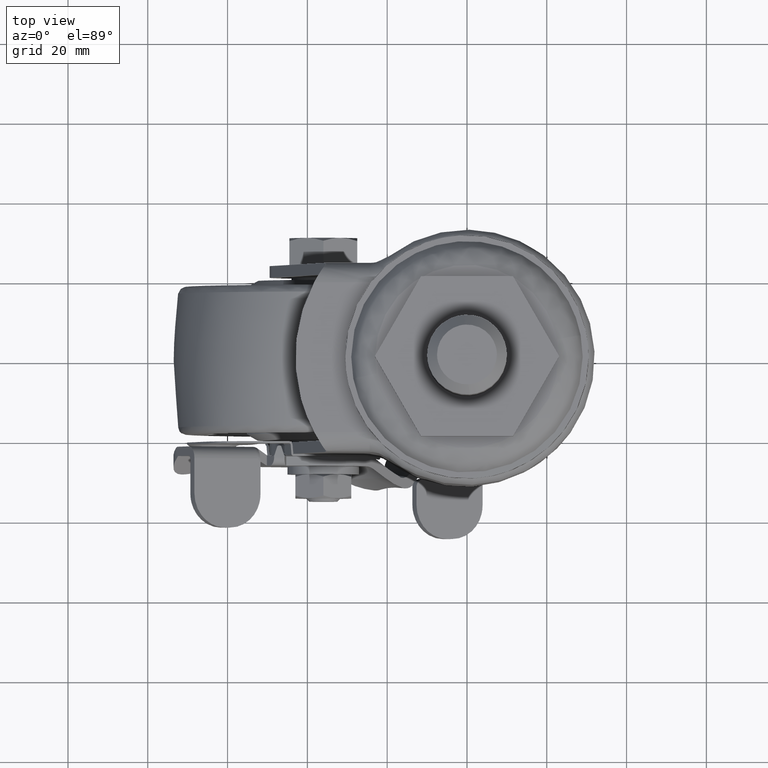
[diagram: clean part render]
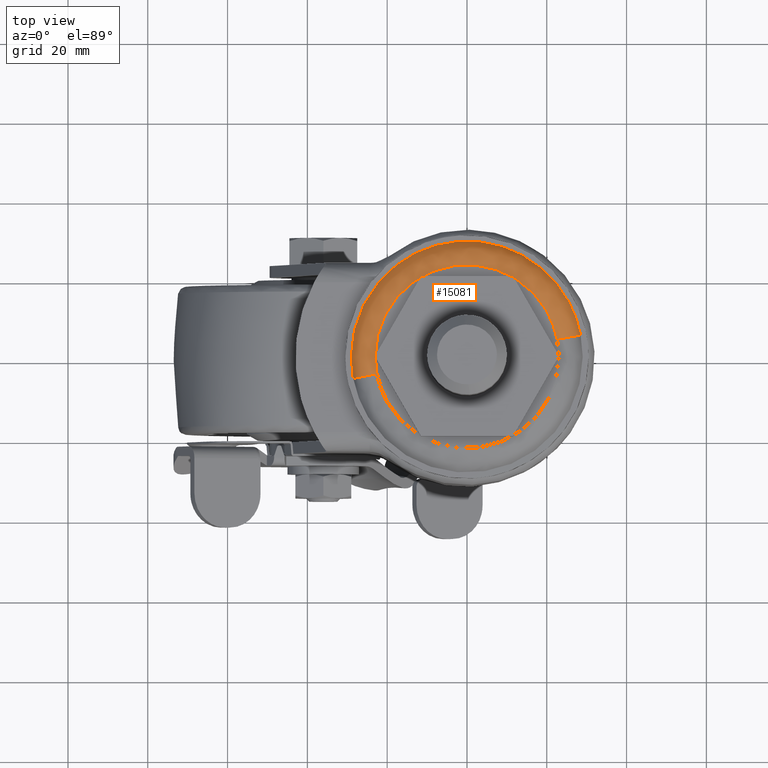
[diagram: same view with one face highlighted and labeled with its STEP entity id]
A machine part, top view. The second image highlights one B-rep face of the part: STEP entity #15081.
In plain terms, the highlighted face is a freeform B-spline surface patch.
Its self-contained STEP definition (entity closure, byte-faithful):
#14879=CARTESIAN_POINT('',(-22.592620522763319,-4.309772860066573,-1.379669E-014));
#14880=VERTEX_POINT('',#14879);
#14881=CARTESIAN_POINT('',(-23.000014000000000,0.0,0.0));
#14882=VERTEX_POINT('',#14881);
#14883=CARTESIAN_POINT('',(-22.592620522763326,-4.309772860066573,-1.379669E-014));
#14884=CARTESIAN_POINT('',(-23.000014002036718,-2.174141441147879,-6.898346E-015));
#14885=CARTESIAN_POINT('',(-23.000014000000000,0.0,0.0));
#14893=(BOUNDED_CURVE()B_SPLINE_CURVE(2,(#14883,#14884,#14885),.UNSPECIFIED.,.F.,.U.)B_SPLINE_CURVE_WITH_KNOTS((3,3),(0.967838633736956,1.0),.UNSPECIFIED.)CURVE()GEOMETRIC_REPRESENTATION_ITEM()RATIONAL_B_SPLINE_CURVE((0.934335795154084,0.962320615655114,1.0))REPRESENTATION_ITEM(''));
#14894=EDGE_CURVE('',#14880,#14882,#14893,.T.);
#14924=CARTESIAN_POINT('',(22.592620522763330,4.309772860066568,-1.367286E-014));
#14925=VERTEX_POINT('',#14924);
#14939=CARTESIAN_POINT('',(-23.000014000000000,0.0,0.0));
#14940=CARTESIAN_POINT('',(-23.000177241126341,1.459248833330094,-4.095208E-017));
#14941=CARTESIAN_POINT('',(-22.746658439741591,4.112367273721755,-1.908518E-016));
#14942=CARTESIAN_POINT('',(-21.794596104422300,7.576560490877744,-5.711724E-016));
#14943=CARTESIAN_POINT('',(-20.462933076416810,10.668897291321350,-1.053876E-015));
#14944=CARTESIAN_POINT('',(-18.845244056520350,13.319739327032970,-1.609192E-015));
#14945=CARTESIAN_POINT('',(-16.563184557954042,16.089016523005220,-2.365310E-015));
#14946=CARTESIAN_POINT('',(-13.979065139226810,18.395604768364759,-3.198211E-015));
#14947=CARTESIAN_POINT('',(-10.607552556040940,20.529696521291271,-4.260307E-015));
#14948=CARTESIAN_POINT('',(-7.125611407914833,21.989811167735990,-5.336290E-015));
#14949=CARTESIAN_POINT('',(-3.233496537008092,22.876532065584470,-6.518080E-015));
#14950=CARTESIAN_POINT('',(0.178057401774197,23.080250276325661,-7.537840E-015));
#14951=CARTESIAN_POINT('',(3.841281206887391,22.769784311966198,-8.617958E-015));
#14952=CARTESIAN_POINT('',(7.208875326105144,21.955036122953100,-9.596036E-015));
#14953=CARTESIAN_POINT('',(10.509918478421310,20.541013204099048,-1.053749E-014));
#14954=CARTESIAN_POINT('',(13.355471424822021,18.823372309845791,-1.133503E-014));
#14955=CARTESIAN_POINT('',(15.652507432867090,16.938002171326438,-1.196482E-014));
#14956=CARTESIAN_POINT('',(17.719150640714020,14.748813186406560,-1.251759E-014));
#14957=CARTESIAN_POINT('',(19.277544720913390,12.648635162941700,-1.292179E-014));
#14958=CARTESIAN_POINT('',(20.656982505836780,10.223972696669270,-1.326369E-014));
#14959=CARTESIAN_POINT('',(21.808459029643021,7.536420138508539,-1.353043E-014));
#14960=CARTESIAN_POINT('',(22.368979944525162,5.482569301257576,-1.363933E-014));
#14961=CARTESIAN_POINT('',(22.592620522763330,4.309772860066568,-1.367286E-014));
#14962=B_SPLINE_CURVE_WITH_KNOTS('',3,(#14939,#14940,#14941,#14942,#14943,#14944,#14945,#14946,#14947,#14948,#14949,#14950,#14951,#14952,#14953,#14954,#14955,#14956,#14957,#14958,#14959,#14960,#14961),.UNSPECIFIED.,.F.,.U.,(4,1,1,1,1,1,1,1,1,1,1,1,1,1,1,1,1,1,1,1,4),(0.000000130308166,4.377726954667715,7.959529496042968,10.745333997359580,14.459827259438670,17.245665271459661,21.490762058602250,24.807248666924071,29.184986131170231,32.766796483307722,36.746471852684827,39.399652408573701,43.777448995629292,47.093910793608700,50.145060054894110,53.726867299544693,55.982078803862848,59.165907230270392,61.553776716670768,64.339590681668014,67.921368663395427),.UNSPECIFIED.);
#14963=EDGE_CURVE('',#14882,#14925,#14962,.T.);
#14974=CARTESIAN_POINT('',(-22.096084218876928,-4.858699529451680,-0.012154295163467));
#14975=CARTESIAN_POINT('',(-22.154974723524884,-4.549984692902714,-0.012154295163467));
#14976=CARTESIAN_POINT('',(-26.452208210416028,17.976902136287794,-0.012154295163467));
#14977=CARTESIAN_POINT('',(-4.237653037064120,22.214555173351904,-0.012154295163467));
#14978=CARTESIAN_POINT('',(17.976902136287794,26.452208210416028,-0.012154295163467));
#14979=CARTESIAN_POINT('',(22.274135623131205,3.925321381475699,-0.012154295163467));
#14980=CARTESIAN_POINT('',(22.333026127732545,3.616606545171131,-0.012154295163467));
#14981=CARTESIAN_POINT('',(-27.726205353132354,-6.096704717827684,0.352151653519839));
#14982=CARTESIAN_POINT('',(-27.800101261975065,-5.709328797781053,0.352151653519839));
#14983=CARTESIAN_POINT('',(-33.192277401768784,22.557448428715869,0.352151653519839));
#14984=CARTESIAN_POINT('',(-5.317414486526457,27.874862915242343,0.352151653519839));
#14985=CARTESIAN_POINT('',(22.557448428715869,33.192277401768784,0.352151653519839));
#14986=CARTESIAN_POINT('',(27.949624568449714,4.925500175585777,0.352151653519839));
#14987=CARTESIAN_POINT('',(28.023520477233923,4.538124255845817,0.352151653519839));
#14988=CARTESIAN_POINT('',(-28.390646760437473,-6.242808485402192,-5.381540011107966));
#14989=CARTESIAN_POINT('',(-28.466313539150033,-5.846149340399469,-5.381540011107966));
#14990=CARTESIAN_POINT('',(-33.987709853761416,23.098023764875080,-5.381540011107967));
#14991=CARTESIAN_POINT('',(-5.444843044443167,28.542866809318244,-5.381540011107966));
#14992=CARTESIAN_POINT('',(23.098023764875080,33.987709853761416,-5.381540011107967));
#14993=CARTESIAN_POINT('',(28.619420079425133,5.043536748808303,-5.381540011107966));
#14994=CARTESIAN_POINT('',(28.695086858077783,4.646877604119601,-5.381540011107968));
#15002=(BOUNDED_SURFACE()B_SPLINE_SURFACE(2,2,((#14974,#14981,#14988),(#14975,#14982,#14989),(#14976,#14983,#14990),(#14977,#14984,#14991),(#14978,#14985,#14992),(#14979,#14986,#14993),(#14980,#14987,#14994)),.UNSPECIFIED.,.F.,.F.,.U.)B_SPLINE_SURFACE_WITH_KNOTS((3,1,2,1,3),(3,3),(0.0,0.962882703943145,49.107017864642678,97.251153025342219,98.214035728509572),(0.0,9.718775954553765),.UNSPECIFIED.)GEOMETRIC_REPRESENTATION_ITEM()RATIONAL_B_SPLINE_SURFACE(((0.929149921970345,0.674091993070118,0.927204762977316),(0.923770116084646,0.670188980234330,0.921836219620464),(0.649400016117692,0.471135325756949,0.648040508624277),(0.918390310198947,0.666285967398543,0.916467676263612),(0.649400016117692,0.471135325756949,0.648040508624277),(0.923770116080312,0.670188980231186,0.921836219616138),(0.929149921961676,0.674091993063829,0.927204762968665)))REPRESENTATION_ITEM('')SURFACE());
#15003=CARTESIAN_POINT('',(-28.486344023138219,-5.434060746367759,-4.999999999962538));
#15004=VERTEX_POINT('',#15003);
#15005=CARTESIAN_POINT('',(-29.000014000000000,0.0,-5.000000000000003));
#15006=VERTEX_POINT('',#15005);
#15007=CARTESIAN_POINT('',(-28.486344023138216,-5.434060746367760,-4.999999999962539));
#15008=CARTESIAN_POINT('',(-29.000013999996622,-2.741308427611091,-4.999999999981270));
#15009=CARTESIAN_POINT('',(-29.000014000000000,0.0,-5.000000000000003));
#15017=(BOUNDED_CURVE()B_SPLINE_CURVE(2,(#15007,#15008,#15009),.UNSPECIFIED.,.F.,.U.)B_SPLINE_CURVE_WITH_KNOTS((3,3),(0.967838633740202,1.0),.UNSPECIFIED.)CURVE()GEOMETRIC_REPRESENTATION_ITEM()RATIONAL_B_SPLINE_CURVE((0.934335795159733,0.962320615658918,1.0))REPRESENTATION_ITEM(''));
#15018=EDGE_CURVE('',#15004,#15006,#15017,.T.);
#15019=ORIENTED_EDGE('',*,*,#15018,.F.);
#15020=CARTESIAN_POINT('',(-22.592620522763326,-4.309772860066573,-1.379669E-014));
#15021=CARTESIAN_POINT('',(-27.585914043859496,-5.262294541662214,-3.455751E-009));
#15022=CARTESIAN_POINT('',(-28.486344023138216,-5.434060746367759,-4.999999999962538));
#15030=(BOUNDED_CURVE()B_SPLINE_CURVE(2,(#15020,#15021,#15022),.UNSPECIFIED.,.F.,.U.)B_SPLINE_CURVE_WITH_KNOTS((3,3),(-1.709144384375401,-0.296801827038670),.UNSPECIFIED.)CURVE()GEOMETRIC_REPRESENTATION_ITEM()RATIONAL_B_SPLINE_CURVE((0.896528474461159,0.688060493461435,0.894780459930689))REPRESENTATION_ITEM(''));
#15031=EDGE_CURVE('',#14880,#15004,#15030,.T.);
#15032=ORIENTED_EDGE('',*,*,#15031,.F.);
#15033=ORIENTED_EDGE('',*,*,#14894,.T.);
#15034=ORIENTED_EDGE('',*,*,#14963,.T.);
#15035=CARTESIAN_POINT('',(28.486344023138219,5.434060746367747,-4.999999999962539));
#15036=VERTEX_POINT('',#15035);
#15037=CARTESIAN_POINT('',(22.592620522763326,4.309772860066569,-1.367286E-014));
#15038=CARTESIAN_POINT('',(27.585914043859489,5.262294541662203,-3.455754E-009));
#15039=CARTESIAN_POINT('',(28.486344023138216,5.434060746367747,-4.999999999962539));
#15047=(BOUNDED_CURVE()B_SPLINE_CURVE(2,(#15037,#15038,#15039),.UNSPECIFIED.,.F.,.U.)B_SPLINE_CURVE_WITH_KNOTS((3,3),(-1.709144384375400,-0.296801827038670),.UNSPECIFIED.)CURVE()GEOMETRIC_REPRESENTATION_ITEM()RATIONAL_B_SPLINE_CURVE((0.896528474461158,0.688060493461435,0.894780459930689))REPRESENTATION_ITEM(''));
#15048=EDGE_CURVE('',#14925,#15036,#15047,.T.);
#15049=ORIENTED_EDGE('',*,*,#15048,.T.);
#15050=CARTESIAN_POINT('',(-29.000014000000000,0.0,-5.000000000000003));
#15051=CARTESIAN_POINT('',(-29.000076011561319,1.338101134339348,-4.999999999999934));
#15052=CARTESIAN_POINT('',(-28.826051039587671,3.847041326717258,-4.999999999999651));
#15053=CARTESIAN_POINT('',(-28.152512220180579,7.187101760445815,-4.999999999998997));
#15054=CARTESIAN_POINT('',(-27.144669503667242,10.380739673224371,-4.999999999998174));
#15055=CARTESIAN_POINT('',(-25.896642614498219,13.189218678447901,-4.999999999997205));
#15056=CARTESIAN_POINT('',(-23.834772529191099,16.703514804213910,-4.999999999995629));
#15057=CARTESIAN_POINT('',(-21.279695279783429,19.896827660221671,-4.999999999993811));
#15058=CARTESIAN_POINT('',(-18.202584900668882,22.659024584300610,-4.999999999991643));
#15059=CARTESIAN_POINT('',(-15.469322581929511,24.594804395704379,-4.999999999989764));
#15060=CARTESIAN_POINT('',(-12.202859896746229,26.420085885383479,-4.999999999987523));
#15061=CARTESIAN_POINT('',(-8.753008439453204,27.739616727184291,-4.999999999985257));
#15062=CARTESIAN_POINT('',(-4.896903197505337,28.653317561821080,-4.999999999982685));
#15063=CARTESIAN_POINT('',(-1.731490038171846,29.017134352593789,-4.999999999980820));
#15064=CARTESIAN_POINT('',(2.119685181283889,29.002514630420642,-4.999999999978071));
#15065=CARTESIAN_POINT('',(5.447227148682340,28.565151782378639,-4.999999999975958));
#15066=CARTESIAN_POINT('',(8.847536435592895,27.669280607344611,-4.999999999974011));
#15067=CARTESIAN_POINT('',(11.827988744693750,26.552484398851870,-4.999999999971868));
#15068=CARTESIAN_POINT('',(15.352323472943290,24.732304471704900,-4.999999999970023));
#15069=CARTESIAN_POINT('',(18.842618012086280,22.204981880291360,-4.999999999967576));
#15070=CARTESIAN_POINT('',(21.688678788351691,19.359078246407801,-4.999999999966160));
#15071=CARTESIAN_POINT('',(24.029034884949610,16.370457970493170,-4.999999999964677));
#15072=CARTESIAN_POINT('',(25.754742117842511,13.493654115017501,-4.999999999963897));
#15073=CARTESIAN_POINT('',(27.425273743250390,9.715648237408006,-4.999999999962713));
#15074=CARTESIAN_POINT('',(28.162628115172691,7.131881697177900,-4.999999999963158));
#15075=CARTESIAN_POINT('',(28.486344023138219,5.434060746367747,-4.999999999962539));
#15076=B_SPLINE_CURVE_WITH_KNOTS('',3,(#15050,#15051,#15052,#15053,#15054,#15055,#15056,#15057,#15058,#15059,#15060,#15061,#15062,#15063,#15064,#15065,#15066,#15067,#15068,#15069,#15070,#15071,#15072,#15073,#15074,#15075),.UNSPECIFIED.,.F.,.U.,(4,1,1,1,1,1,1,1,1,1,1,1,1,1,1,1,1,1,1,1,1,1,1,4),(0.000000100894169,4.014298511695159,7.526881884560638,10.203177528598200,14.050273769001640,16.726561231925938,22.413595364615212,26.260723822093411,29.104248438807609,32.449548543293297,37.467561708858021,40.143755256516243,44.325472528895247,47.001577754396159,51.685018722831067,54.361289476287403,57.539354860247222,61.219182315487089,66.237171647732723,70.418820804990062,73.262327841864831,77.611265230142095,80.454788084699700,85.639975786799383),.UNSPECIFIED.);
#15077=EDGE_CURVE('',#15006,#15036,#15076,.T.);
#15078=ORIENTED_EDGE('',*,*,#15077,.F.);
#15079=EDGE_LOOP('',(#15019,#15032,#15033,#15034,#15049,#15078));
#15080=FACE_OUTER_BOUND('',#15079,.T.);
#15081=ADVANCED_FACE('',(#15080),#15002,.T.);